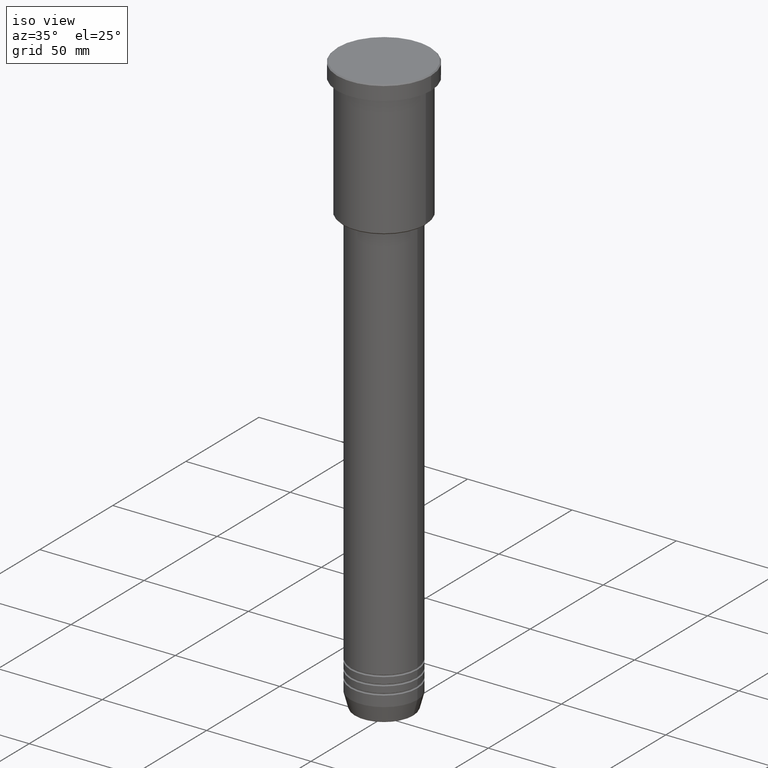
[diagram: clean part render]
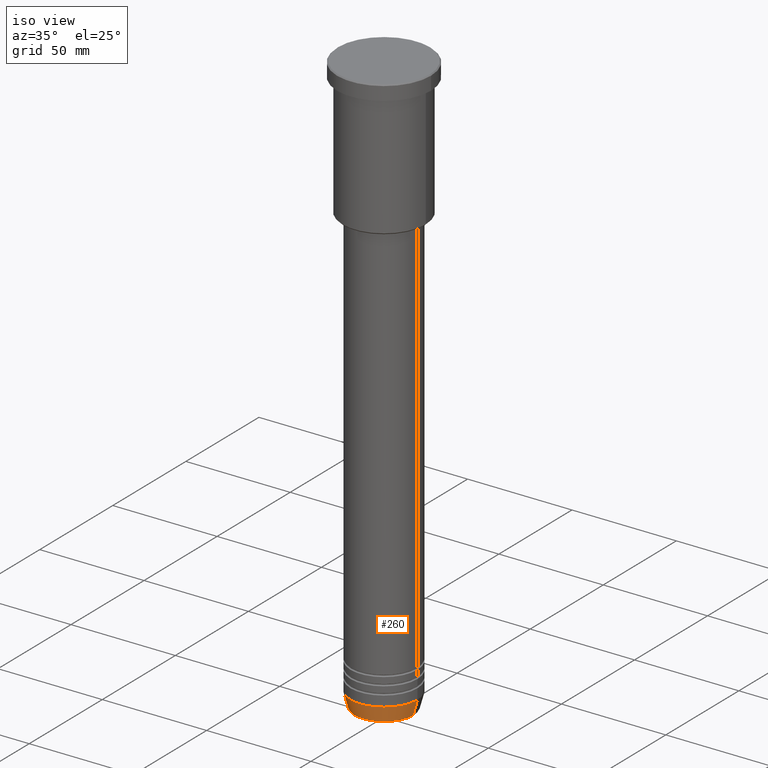
[diagram: same view with one face highlighted and labeled with its STEP entity id]
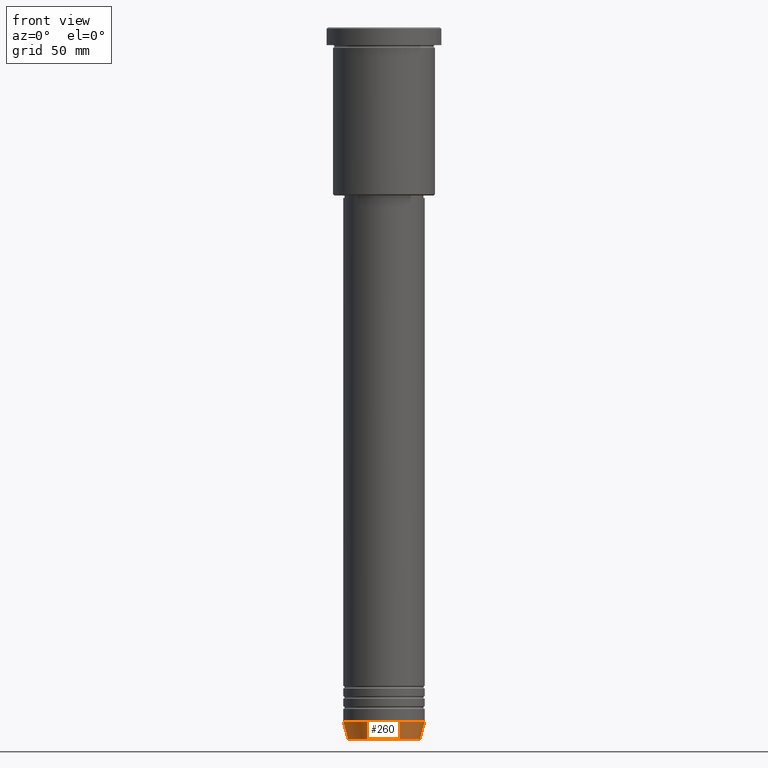
[diagram: same view with one face highlighted and labeled with its STEP entity id]
A machine part, iso view. The second image highlights one B-rep face of the part: STEP entity #260.
A second angle (front view) of the same face is appended — the face is thin or edge-on in the first view.
In plain terms, the highlighted conical surface has half-angle 15 deg.
Its self-contained STEP definition (entity closure, byte-faithful):
#2 = VERTEX_POINT ( 'NONE', #736 ) ;
#18 = AXIS2_PLACEMENT_3D ( 'NONE', #130, #316, #939 ) ;
#22 = VERTEX_POINT ( 'NONE', #1006 ) ;
#30 = AXIS2_PLACEMENT_3D ( 'NONE', #393, #669, #208 ) ;
#52 = DIRECTION ( 'NONE',  ( -0.2588190451025213501, 3.169619151431772337E-17, 0.9659258262890680902 ) ) ;
#130 = CARTESIAN_POINT ( 'NONE',  ( 0.000000000000000000, 0.000000000000000000, -272.5000000000000000 ) ) ;
#135 = EDGE_CURVE ( 'NONE', #428, #2, #750, .T. ) ;
#169 = ORIENTED_EDGE ( 'NONE', *, *, #1005, .F. ) ;
#178 = EDGE_CURVE ( 'NONE', #2, #22, #217, .T. ) ;
#184 = CIRCLE ( 'NONE', #18, 16.00000000000000000 ) ;
#208 = DIRECTION ( 'NONE',  ( 1.000000000000000000, 0.000000000000000000, 0.000000000000000000 ) ) ;
#217 = LINE ( 'NONE', #463, #1037 ) ;
#234 = DIRECTION ( 'NONE',  ( -0.000000000000000000, -0.000000000000000000, 1.000000000000000000 ) ) ;
#260 = ADVANCED_FACE ( 'NONE', ( #626 ), #1137, .T. ) ;
#301 = VECTOR ( 'NONE', #52, 1000.000000000000000 ) ;
#316 = DIRECTION ( 'NONE',  ( -0.000000000000000000, -0.000000000000000000, 1.000000000000000000 ) ) ;
#354 = VERTEX_POINT ( 'NONE', #1048 ) ;
#393 = CARTESIAN_POINT ( 'NONE',  ( 0.000000000000000000, 0.000000000000000000, -279.6294095225512706 ) ) ;
#421 = ORIENTED_EDGE ( 'NONE', *, *, #178, .T. ) ;
#428 = VERTEX_POINT ( 'NONE', #548 ) ;
#463 = CARTESIAN_POINT ( 'NONE',  ( 16.00000000000000000, 0.000000000000000000, -272.5000000000000000 ) ) ;
#477 = LINE ( 'NONE', #843, #301 ) ;
#548 = CARTESIAN_POINT ( 'NONE',  ( -14.08968047592161632, 1.842461544110200874E-15, -279.6294095225512706 ) ) ;
#573 = ORIENTED_EDGE ( 'NONE', *, *, #1092, .F. ) ;
#577 = AXIS2_PLACEMENT_3D ( 'NONE', #874, #234, #1142 ) ;
#626 = FACE_OUTER_BOUND ( 'NONE', #974, .T. ) ;
#658 = DIRECTION ( 'NONE',  ( 0.2588190451025213501, 0.000000000000000000, 0.9659258262890680902 ) ) ;
#669 = DIRECTION ( 'NONE',  ( -0.000000000000000000, -0.000000000000000000, 1.000000000000000000 ) ) ;
#736 = CARTESIAN_POINT ( 'NONE',  ( 14.08968047592161632, 0.000000000000000000, -279.6294095225512706 ) ) ;
#750 = CIRCLE ( 'NONE', #30, 14.08968047592161632 ) ;
#843 = CARTESIAN_POINT ( 'NONE',  ( -16.00000000000000000, 1.959434878635765131E-15, -272.5000000000000000 ) ) ;
#874 = CARTESIAN_POINT ( 'NONE',  ( 0.000000000000000000, 0.000000000000000000, -272.5000000000000000 ) ) ;
#939 = DIRECTION ( 'NONE',  ( 1.000000000000000000, 0.000000000000000000, 0.000000000000000000 ) ) ;
#970 = ORIENTED_EDGE ( 'NONE', *, *, #135, .T. ) ;
#974 = EDGE_LOOP ( 'NONE', ( #573, #970, #421, #169 ) ) ;
#1005 = EDGE_CURVE ( 'NONE', #354, #22, #184, .T. ) ;
#1006 = CARTESIAN_POINT ( 'NONE',  ( 16.00000000000000000, 0.000000000000000000, -272.5000000000000000 ) ) ;
#1037 = VECTOR ( 'NONE', #658, 1000.000000000000000 ) ;
#1048 = CARTESIAN_POINT ( 'NONE',  ( -16.00000000000000000, 1.959434878635765131E-15, -272.5000000000000000 ) ) ;
#1092 = EDGE_CURVE ( 'NONE', #428, #354, #477, .T. ) ;
#1137 = CONICAL_SURFACE ( 'NONE', #577, 16.00000000000000000, 0.2617993877991500740 ) ;
#1142 = DIRECTION ( 'NONE',  ( 1.000000000000000000, 0.000000000000000000, 0.000000000000000000 ) ) ;